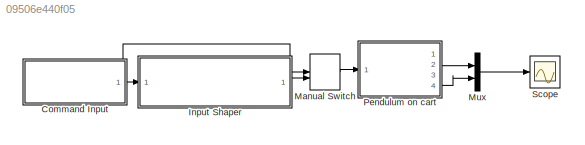
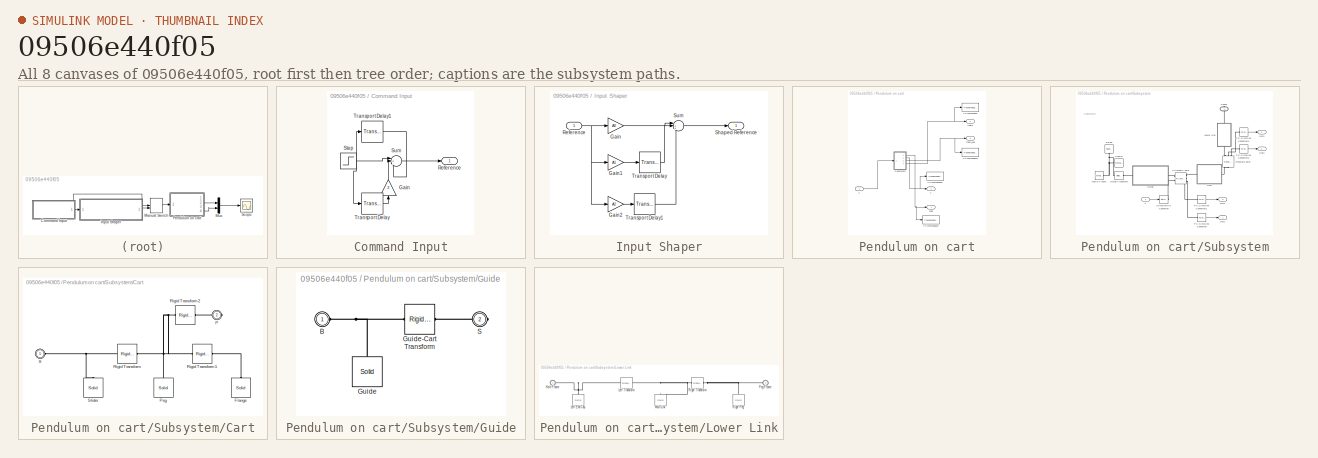
[diagram: thumbnail index - all 8 canvases of the model, root first then tree order]
MODEL slx_09506e440f05
KIND model
CONFIG AbsTol = auto
CONFIG EnableMultiTasking = off
CONFIG FixedStep = 1e-4
CONFIG MaxStep = auto
CONFIG MinStep = auto
CONFIG RelTol = 1e-3
CONFIG SampleTimeConstraint = Unconstrained
CONFIG Solver = FixedStepAuto
CONFIG SolverName = FixedStepAuto
CONFIG StartTime = 0.0
CONFIG StopTime = 10.0
BLOCK [SubSystem] Command Input
  Ports = [0, 1]
  RequestExecContextInheritance = off
  Variant = off
BLOCK [Gain] Command Input/Gain
  Gain = 2
  OutDataTypeStr = Inherit: Inherit via internal rule
  ParamDataTypeStr = Inherit: Inherit via internal rule
  SaturateOnIntegerOverflow = off
BLOCK [Outport] Command Input/Reference 
  IconDisplay = Port number
BLOCK [Step] Command Input/Step
  After = 1.5
  SampleTime = 0
  Time = 0
BLOCK [Sum] Command Input/Sum
  IconShape = round
  InputSameDT = off
  Inputs = |+-+
  OutDataTypeStr = Inherit: Inherit via internal rule
  Ports = [3, 1]
  SaturateOnIntegerOverflow = off
BLOCK [TransportDelay] Command Input/Transport Delay
  DelayTime = 0.2
  Ports = [1, 1]
BLOCK [TransportDelay] Command Input/Transport Delay1
  DelayTime = 0.4
  Ports = [1, 1]
BLOCK [SubSystem] Input Shaper
  Ports = [1, 1]
  RequestExecContextInheritance = off
  Variant = off
BLOCK [Gain] Input Shaper/Gain
  Gain = A0
  OutDataTypeStr = Inherit: Inherit via internal rule
  ParamDataTypeStr = Inherit: Inherit via internal rule
  SaturateOnIntegerOverflow = off
BLOCK [Gain] Input Shaper/Gain1
  Gain = A1
  OutDataTypeStr = Inherit: Inherit via internal rule
  ParamDataTypeStr = Inherit: Inherit via internal rule
  SaturateOnIntegerOverflow = off
BLOCK [Gain] Input Shaper/Gain2
  Gain = A2
  OutDataTypeStr = Inherit: Inherit via internal rule
  ParamDataTypeStr = Inherit: Inherit via internal rule
  SaturateOnIntegerOverflow = off
BLOCK [Inport] Input Shaper/Reference
  IconDisplay = Port number
BLOCK [Outport] Input Shaper/Shaped Reference
  IconDisplay = Port number
BLOCK [Sum] Input Shaper/Sum
  IconShape = round
  InputSameDT = off
  Inputs = |+++
  OutDataTypeStr = Inherit: Inherit via internal rule
  Ports = [3, 1]
  SaturateOnIntegerOverflow = off
BLOCK [TransportDelay] Input Shaper/Transport Delay
  DelayTime = t1
  Ports = [1, 1]
BLOCK [TransportDelay] Input Shaper/Transport Delay1
  DelayTime = t2
  Ports = [1, 1]
BLOCK [ManualSwitch] Manual Switch
BLOCK [Mux] Mux
  DisplayOption = bar
  Inputs = 2
  Ports = [2, 1]
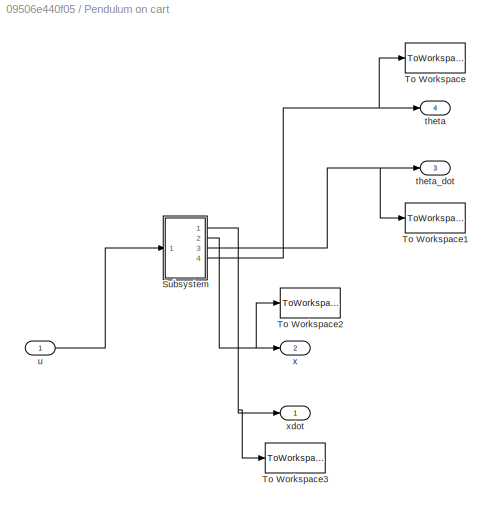
BLOCK [SubSystem] Pendulum on cart
  Ports = [1, 4]
  RequestExecContextInheritance = off
  Variant = off
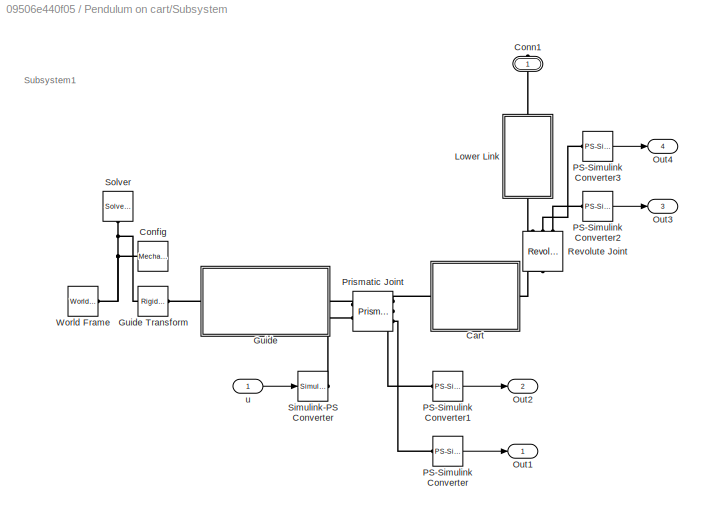
BLOCK [SubSystem] Pendulum on cart/Subsystem
  Ports = [1, 4, 0, 0, 0, 0, 1]
  RequestExecContextInheritance = off
  Variant = off
BLOCK [SubSystem] Pendulum on cart/Subsystem/Cart
  Ports = [0, 0, 0, 0, 0, 1, 1]
  RequestExecContextInheritance = off
  Variant = off
BLOCK [Reference] Pendulum on cart/Subsystem/Cart/Flange  REF=sm_lib/Body Elements/Solid
  Ports = [0, 0, 0, 0, 0, 0, 1]
  SourceBlock = sm_lib/Body Elements/Solid
  SourceProductBaseCode = MS
  SourceProductName = Simscape Multibody
  SourceType = Solid
BLOCK [PMIOPort] Pendulum on cart/Subsystem/Cart/P
  Port = 2
  Side = Right
BLOCK [Reference] Pendulum on cart/Subsystem/Cart/Peg  REF=sm_lib/Body Elements/Solid
  Ports = [0, 0, 0, 0, 0, 0, 1]
  SourceBlock = sm_lib/Body Elements/Solid
  SourceProductBaseCode = MS
  SourceProductName = Simscape Multibody
  SourceType = Solid
BLOCK [Reference] Pendulum on cart/Subsystem/Cart/Rigid Transform  REF=sm_lib/Frames and
Transforms/Rigid
Transform
  Ports = [0, 0, 0, 0, 0, 1, 1]
  SourceBlock = sm_lib/Frames and\nTransforms/Rigid\nTransform
  SourceProductBaseCode = MS
  SourceProductName = Simscape Multibody
  SourceType = Rigid\nTransform
BLOCK [Reference] Pendulum on cart/Subsystem/Cart/Rigid Transform1  REF=sm_lib/Frames and
Transforms/Rigid
Transform
  Ports = [0, 0, 0, 0, 0, 1, 1]
  SourceBlock = sm_lib/Frames and\nTransforms/Rigid\nTransform
  SourceProductBaseCode = MS
  SourceProductName = Simscape Multibody
  SourceType = Rigid\nTransform
BLOCK [Reference] Pendulum on cart/Subsystem/Cart/Rigid Transform2  REF=sm_lib/Frames and
Transforms/Rigid
Transform
  Ports = [0, 0, 0, 0, 0, 1, 1]
  SourceBlock = sm_lib/Frames and\nTransforms/Rigid\nTransform
  SourceProductBaseCode = MS
  SourceProductName = Simscape Multibody
  SourceType = Rigid\nTransform
BLOCK [PMIOPort] Pendulum on cart/Subsystem/Cart/S
  Port = 1
  Side = Left
BLOCK [Reference] Pendulum on cart/Subsystem/Cart/Slider  REF=sm_lib/Body Elements/Solid
  Ports = [0, 0, 0, 0, 0, 0, 1]
  SourceBlock = sm_lib/Body Elements/Solid
  SourceProductBaseCode = MS
  SourceProductName = Simscape Multibody
  SourceType = Solid
BLOCK [Reference] Pendulum on cart/Subsystem/Config  REF=sm_lib/Utilities/Mechanism
Configuration
  Ports = [0, 0, 0, 0, 0, 0, 1]
  SourceBlock = sm_lib/Utilities/Mechanism\nConfiguration
  SourceProductBaseCode = MS
  SourceProductName = Simscape Multibody
  SourceType = Mechanism\nConfiguration
BLOCK [PMIOPort] Pendulum on cart/Subsystem/Conn1
  Port = 1
  Side = Right
BLOCK [SubSystem] Pendulum on cart/Subsystem/Guide
  Ports = [0, 0, 0, 0, 0, 1, 1]
  RequestExecContextInheritance = off
  Variant = off
BLOCK [Reference] Pendulum on cart/Subsystem/Guide Transform  REF=sm_lib/Frames and
Transforms/Rigid
Transform
  Ports = [0, 0, 0, 0, 0, 1, 1]
  SourceBlock = sm_lib/Frames and\nTransforms/Rigid\nTransform
  SourceProductBaseCode = MS
  SourceProductName = Simscape Multibody
  SourceType = Rigid\nTransform
BLOCK [PMIOPort] Pendulum on cart/Subsystem/Guide/B
  Port = 1
  Side = Left
BLOCK [Reference] Pendulum on cart/Subsystem/Guide/Guide  REF=sm_lib/Body Elements/Solid
  Ports = [0, 0, 0, 0, 0, 0, 1]
  SourceBlock = sm_lib/Body Elements/Solid
  SourceProductBaseCode = MS
  SourceProductName = Simscape Multibody
  SourceType = Solid
BLOCK [Reference] Pendulum on cart/Subsystem/Guide/Guide-Cart Transform  REF=sm_lib/Frames and
Transforms/Rigid
Transform
  Ports = [0, 0, 0, 0, 0, 1, 1]
  SourceBlock = sm_lib/Frames and\nTransforms/Rigid\nTransform
  SourceProductBaseCode = MS
  SourceProductName = Simscape Multibody
  SourceType = Rigid\nTransform
BLOCK [PMIOPort] Pendulum on cart/Subsystem/Guide/S
  Port = 2
  Side = Right
BLOCK [SubSystem] Pendulum on cart/Subsystem/Lower Link
  Ports = [0, 0, 0, 0, 0, 1, 1]
  RequestExecContextInheritance = off
  Variant = off
BLOCK [PMIOPort] Pendulum on cart/Subsystem/Lower Link/Hole Frame
  Port = 1
  Side = Left
BLOCK [Reference] Pendulum on cart/Subsystem/Lower Link/Left End Cap  REF=sm_lib/Body Elements/Solid
  Ports = [0, 0, 0, 0, 0, 0, 1]
  SourceBlock = sm_lib/Body Elements/Solid
  SourceProductBaseCode = MS
  SourceProductName = Simscape Multibody
  SourceType = Solid
BLOCK [Reference] Pendulum on cart/Subsystem/Lower Link/Left Transform  REF=sm_lib/Frames and
Transforms/Rigid
Transform
  Ports = [0, 0, 0, 0, 0, 1, 1]
  SourceBlock = sm_lib/Frames and\nTransforms/Rigid\nTransform
  SourceProductBaseCode = MS
  SourceProductName = Simscape Multibody
  SourceType = Rigid\nTransform
BLOCK [Reference] Pendulum on cart/Subsystem/Lower Link/Main Link  REF=sm_lib/Body Elements/Solid
  Ports = [0, 0, 0, 0, 0, 0, 1]
  SourceBlock = sm_lib/Body Elements/Solid
  SourceProductBaseCode = MS
  SourceProductName = Simscape Multibody
  SourceType = Solid
BLOCK [PMIOPort] Pendulum on cart/Subsystem/Lower Link/Peg Frame
  Port = 2
  Side = Right
BLOCK [Reference] Pendulum on cart/Subsystem/Lower Link/Right Peg  REF=sm_lib/Body Elements/Solid
  Ports = [0, 0, 0, 0, 0, 0, 1]
  SourceBlock = sm_lib/Body Elements/Solid
  SourceProductBaseCode = MS
  SourceProductName = Simscape Multibody
  SourceType = Solid
BLOCK [Reference] Pendulum on cart/Subsystem/Lower Link/Right Transform  REF=sm_lib/Frames and
Transforms/Rigid
Transform
  Ports = [0, 0, 0, 0, 0, 1, 1]
  SourceBlock = sm_lib/Frames and\nTransforms/Rigid\nTransform
  SourceProductBaseCode = MS
  SourceProductName = Simscape Multibody
  SourceType = Rigid\nTransform
BLOCK [Outport] Pendulum on cart/Subsystem/Out1
  IconDisplay = Port number
BLOCK [Outport] Pendulum on cart/Subsystem/Out2
  IconDisplay = Port number
  Port = 2
BLOCK [Outport] Pendulum on cart/Subsystem/Out3
  IconDisplay = Port number
  Port = 3
BLOCK [Outport] Pendulum on cart/Subsystem/Out4
  IconDisplay = Port number
  Port = 4
BLOCK [Reference] Pendulum on cart/Subsystem/PS-Simulink Converter  REF=nesl_utility/PS-Simulink
Converter
  Ports = [0, 1, 0, 0, 0, 1]
  SourceBlock = nesl_utility/PS-Simulink\nConverter
  SourceProductBaseCode = SS
  SourceProductName = Simscape
  SourceType = PS-Simulink\nConverter
BLOCK [Reference] Pendulum on cart/Subsystem/PS-Simulink Converter1  REF=nesl_utility/PS-Simulink
Converter
  Ports = [0, 1, 0, 0, 0, 1]
  SourceBlock = nesl_utility/PS-Simulink\nConverter
  SourceProductBaseCode = SS
  SourceProductName = Simscape
  SourceType = PS-Simulink\nConverter
BLOCK [Reference] Pendulum on cart/Subsystem/PS-Simulink Converter2  REF=nesl_utility/PS-Simulink
Converter
  Ports = [0, 1, 0, 0, 0, 1]
  SourceBlock = nesl_utility/PS-Simulink\nConverter
  SourceProductBaseCode = SS
  SourceProductName = Simscape
  SourceType = PS-Simulink\nConverter
BLOCK [Reference] Pendulum on cart/Subsystem/PS-Simulink Converter3  REF=nesl_utility/PS-Simulink
Converter
  Ports = [0, 1, 0, 0, 0, 1]
  SourceBlock = nesl_utility/PS-Simulink\nConverter
  SourceProductBaseCode = SS
  SourceProductName = Simscape
  SourceType = PS-Simulink\nConverter
BLOCK [Reference] Pendulum on cart/Subsystem/Prismatic Joint  REF=sm_lib/Joints/Prismatic
Joint
  Ports = [0, 0, 0, 0, 0, 2, 3]
  SourceBlock = sm_lib/Joints/Prismatic\nJoint
  SourceProductBaseCode = MS
  SourceProductName = Simscape Multibody
  SourceType = Prismatic\nJoint
BLOCK [Reference] Pendulum on cart/Subsystem/Revolute Joint  REF=sm_lib/Joints/Revolute Joint
  Ports = [0, 0, 0, 0, 0, 1, 3]
  SourceBlock = sm_lib/Joints/Revolute Joint
  SourceProductBaseCode = MS
  SourceProductName = Simscape Multibody
  SourceType = Revolute Joint
BLOCK [Reference] Pendulum on cart/Subsystem/Simulink-PS Converter  REF=nesl_utility/Simulink-PS
Converter
  Ports = [1, 0, 0, 0, 0, 0, 1]
  SourceBlock = nesl_utility/Simulink-PS\nConverter
  SourceProductBaseCode = SS
  SourceProductName = Simscape
  SourceType = Simulink-PS\nConverter
BLOCK [Reference] Pendulum on cart/Subsystem/Solver  REF=nesl_utility/Solver
Configuration
  Ports = [0, 0, 0, 0, 0, 0, 1]
  SourceBlock = nesl_utility/Solver\nConfiguration
  SourceProductBaseCode = SS
  SourceProductName = Simscape
  SourceType = Solver\nConfiguration
BLOCK [Reference] Pendulum on cart/Subsystem/World Frame  REF=sm_lib/Frames and
Transforms/World Frame
  Ports = [0, 0, 0, 0, 0, 0, 1]
  SourceBlock = sm_lib/Frames and\nTransforms/World Frame
  SourceProductBaseCode = MS
  SourceProductName = Simscape Multibody
  SourceType = World Frame
BLOCK [Inport] Pendulum on cart/Subsystem/u
  IconDisplay = Port number
BLOCK [ToWorkspace] Pendulum on cart/To Workspace
  FixptAsFi = on
  MaxDataPoints = inf
  Ports = [1]
  SampleTime = -1
  Save2DSignal = 3-D array (concatenate along third dimension)
  SaveFormat = Timeseries
  VariableName = theta
BLOCK [ToWorkspace] Pendulum on cart/To Workspace1
  FixptAsFi = on
  MaxDataPoints = inf
  Ports = [1]
  SampleTime = -1
  Save2DSignal = 3-D array (concatenate along third dimension)
  SaveFormat = Timeseries
  VariableName = theta_dot
BLOCK [ToWorkspace] Pendulum on cart/To Workspace2
  FixptAsFi = on
  MaxDataPoints = inf
  Ports = [1]
  SampleTime = -1
  Save2DSignal = 3-D array (concatenate along third dimension)
  SaveFormat = Timeseries
  VariableName = x
BLOCK [ToWorkspace] Pendulum on cart/To Workspace3
  FixptAsFi = on
  MaxDataPoints = inf
  Ports = [1]
  SampleTime = -1
  Save2DSignal = 3-D array (concatenate along third dimension)
  SaveFormat = Timeseries
  VariableName = xdot
BLOCK [Outport] Pendulum on cart/theta
  IconDisplay = Port number
  Port = 4
BLOCK [Outport] Pendulum on cart/theta_dot
  IconDisplay = Port number
  Port = 3
BLOCK [Inport] Pendulum on cart/u
  IconDisplay = Port number
BLOCK [Outport] Pendulum on cart/x
  IconDisplay = Port number
  Port = 2
BLOCK [Outport] Pendulum on cart/xdot
  IconDisplay = Port number
BLOCK [Scope] Scope
  NumInputPorts = 1
  Ports = [1]
  ScopeSpecificationString = Simulink.scopes.TimeScopeBlockCfg('CurrentConfiguration', extmgr.ConfigurationSet(extmgr.Configuration('Core','General UI',true),extmgr.Configuration('Core','Source UI',true),extmgr.Configuration('Sources','WiredSimulink',true),extmgr.Configuration('Visuals','Time Domain',true,'SerializedDisplays',{struct('MinYLimReal','0.00612','MaxYLimReal','0.10394','YLabelReal','','MinYLimMag','0.00612','MaxYL...<+1482ch>
ANNOTATION Pendulum on cart/Subsystem: Subsystem1
LINE Command Input/Gain:1 -> Command Input/Sum:2
NET Command Input/Step:1 -> Command Input/Sum:1, Command Input/Transport Delay1:1, Command Input/Transport Delay:1
LINE Command Input/Sum:1 -> Command Input/Reference :1
LINE Command Input/Transport Delay1:1 -> Command Input/Sum:3
LINE Command Input/Transport Delay:1 -> Command Input/Gain:1
NET Command Input:1 -> Input Shaper:1, Manual Switch:1
LINE Input Shaper/Gain1:1 -> Input Shaper/Transport Delay:1
LINE Input Shaper/Gain2:1 -> Input Shaper/Transport Delay1:1
LINE Input Shaper/Gain:1 -> Input Shaper/Sum:1
NET Input Shaper/Reference:1 -> Input Shaper/Gain1:1, Input Shaper/Gain2:1, Input Shaper/Gain:1
LINE Input Shaper/Sum:1 -> Input Shaper/Shaped Reference:1
LINE Input Shaper/Transport Delay1:1 -> Input Shaper/Sum:3
LINE Input Shaper/Transport Delay:1 -> Input Shaper/Sum:2
LINE Input Shaper:1 -> Manual Switch:2
LINE Manual Switch:1 -> Pendulum on cart:1
LINE Mux:1 -> Scope:1
LINE Pendulum on cart/Subsystem/PS-Simulink Converter1:1 -> Pendulum on cart/Subsystem/Out2:1
LINE Pendulum on cart/Subsystem/PS-Simulink Converter2:1 -> Pendulum on cart/Subsystem/Out3:1
LINE Pendulum on cart/Subsystem/PS-Simulink Converter3:1 -> Pendulum on cart/Subsystem/Out4:1
LINE Pendulum on cart/Subsystem/PS-Simulink Converter:1 -> Pendulum on cart/Subsystem/Out1:1
LINE Pendulum on cart/Subsystem/u:1 -> Pendulum on cart/Subsystem/Simulink-PS Converter:1
NET Pendulum on cart/Subsystem:1 -> Pendulum on cart/To Workspace3:1, Pendulum on cart/xdot:1
NET Pendulum on cart/Subsystem:2 -> Pendulum on cart/To Workspace2:1, Pendulum on cart/x:1
NET Pendulum on cart/Subsystem:3 -> Pendulum on cart/To Workspace1:1, Pendulum on cart/theta_dot:1
NET Pendulum on cart/Subsystem:4 -> Pendulum on cart/To Workspace:1, Pendulum on cart/theta:1
LINE Pendulum on cart/u:1 -> Pendulum on cart/Subsystem:1
LINE Pendulum on cart:2 -> Mux:1
LINE Pendulum on cart:4 -> Mux:2
PLINE Pendulum on cart/Subsystem/Cart/Flange:RConn1 -- Pendulum on cart/Subsystem/Cart/Rigid Transform1:RConn1
PLINE Pendulum on cart/Subsystem/Cart/P:RConn1 -- Pendulum on cart/Subsystem/Cart/Rigid Transform2:RConn1
PNET net1: Pendulum on cart/Subsystem/Cart/Peg:RConn1 -- Pendulum on cart/Subsystem/Cart/Rigid Transform1:LConn1 -- Pendulum on cart/Subsystem/Cart/Rigid Transform2:LConn1 -- Pendulum on cart/Subsystem/Cart/Rigid Transform:RConn1
PNET net2: Pendulum on cart/Subsystem/Cart/Rigid Transform:LConn1 -- Pendulum on cart/Subsystem/Cart/S:RConn1 -- Pendulum on cart/Subsystem/Cart/Slider:RConn1
PLINE Pendulum on cart/Subsystem/Cart:LConn1 -- Pendulum on cart/Subsystem/Prismatic Joint:RConn1
PLINE Pendulum on cart/Subsystem/Cart:RConn1 -- Pendulum on cart/Subsystem/Revolute Joint:LConn1
PNET net3: Pendulum on cart/Subsystem/Config:RConn1 -- Pendulum on cart/Subsystem/Guide Transform:LConn1 -- Pendulum on cart/Subsystem/Solver:RConn1 -- Pendulum on cart/Subsystem/World Frame:RConn1
PLINE Pendulum on cart/Subsystem/Conn1:RConn1 -- Pendulum on cart/Subsystem/Lower Link:RConn1
PLINE Pendulum on cart/Subsystem/Guide Transform:RConn1 -- Pendulum on cart/Subsystem/Guide:LConn1
PNET net4: Pendulum on cart/Subsystem/Guide/B:RConn1 -- Pendulum on cart/Subsystem/Guide/Guide-Cart Transform:LConn1 -- Pendulum on cart/Subsystem/Guide/Guide:RConn1
PLINE Pendulum on cart/Subsystem/Guide/Guide-Cart Transform:RConn1 -- Pendulum on cart/Subsystem/Guide/S:RConn1
PLINE Pendulum on cart/Subsystem/Guide:RConn1 -- Pendulum on cart/Subsystem/Prismatic Joint:LConn1
PNET net5: Pendulum on cart/Subsystem/Lower Link/Hole Frame:RConn1 -- Pendulum on cart/Subsystem/Lower Link/Left End Cap:RConn1 -- Pendulum on cart/Subsystem/Lower Link/Left Transform:RConn1
PNET net6: Pendulum on cart/Subsystem/Lower Link/Left Transform:LConn1 -- Pendulum on cart/Subsystem/Lower Link/Main Link:RConn1 -- Pendulum on cart/Subsystem/Lower Link/Right Transform:LConn1
PNET net7: Pendulum on cart/Subsystem/Lower Link/Peg Frame:RConn1 -- Pendulum on cart/Subsystem/Lower Link/Right Peg:RConn1 -- Pendulum on cart/Subsystem/Lower Link/Right Transform:RConn1
PLINE Pendulum on cart/Subsystem/Lower Link:LConn1 -- Pendulum on cart/Subsystem/Revolute Joint:RConn1
PLINE Pendulum on cart/Subsystem/PS-Simulink Converter1:LConn1 -- Pendulum on cart/Subsystem/Prismatic Joint:RConn2
PLINE Pendulum on cart/Subsystem/PS-Simulink Converter2:LConn1 -- Pendulum on cart/Subsystem/Revolute Joint:RConn3
PLINE Pendulum on cart/Subsystem/PS-Simulink Converter3:LConn1 -- Pendulum on cart/Subsystem/Revolute Joint:RConn2
PLINE Pendulum on cart/Subsystem/PS-Simulink Converter:LConn1 -- Pendulum on cart/Subsystem/Prismatic Joint:RConn3
PLINE Pendulum on cart/Subsystem/Prismatic Joint:LConn2 -- Pendulum on cart/Subsystem/Simulink-PS Converter:RConn1
note: NET lines group one-source signal fan-out (src -> all destinations, sorted); 1:1 wires keep LINE; PNET lines group multi-terminal physical nets as a canonical sorted terminal list (undirected conserving connections); 2-terminal nets keep the pairwise PLINE form
